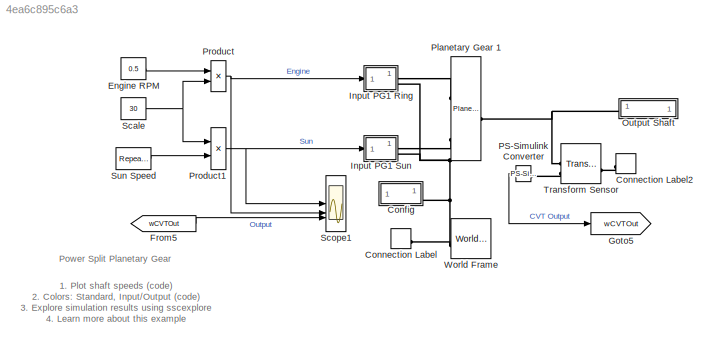
MODEL slx_4ea6c895c6a3
KIND model
CONFIG AbsTol = 1e-4
CONFIG EnableMultiTasking = on
CONFIG MaxStep = 0.01
CONFIG PreLoadFcn = cvtPar = sm_cvt_power_split_pg_4range_param('InputOutput',HMPST);
CONFIG SolverName = daessc
CONFIG StopTime = 25
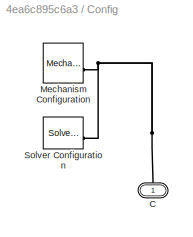
BLOCK [SubSystem] Config
BLOCK [PMIOPort] Config/C
  NameLocation = right
  Side = Left
BLOCK [Reference] Config/Mechanism Configuration  REF=sm_lib/Utilities/Mechanism
Configuration
  SourceBlock = sm_lib/Utilities/Mechanism\nConfiguration
  SourceType = Mechanism\nConfiguration
BLOCK [Reference] Config/Solver Configuration  REF=nesl_utility/Solver
Configuration
  SourceBlock = nesl_utility/Solver\nConfiguration
  SourceType = Solver\nConfiguration
BLOCK [ConnectionLabel] Connection Label
  Label = W
BLOCK [ConnectionLabel] Connection Label2
  Label = W
BLOCK [Constant] Engine RPM
  Value = 0.5
BLOCK [From] From5
  GotoTag = wCVTOut
BLOCK [Goto] Goto5
  GotoTag = wCVTOut
  NameLocation = top
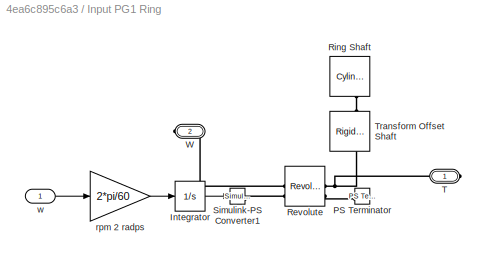
BLOCK [SubSystem] Input PG1 Ring
  NameLocation = top
  Tag = PublishSubsystem
BLOCK [Integrator] Input PG1 Ring/Integrator
BLOCK [Reference] Input PG1 Ring/PS Terminator  REF=fl_lib/Physical Signals/Sinks/PS Terminator
  SourceBlock = fl_lib/Physical Signals/Sinks/PS Terminator
  SourceType = PS Terminator
BLOCK [Reference] Input PG1 Ring/Revolute  REF=sm_lib/Joints/Revolute Joint
  SourceBlock = sm_lib/Joints/Revolute Joint
  SourceType = Revolute Joint
BLOCK [Reference] Input PG1 Ring/Ring Shaft  REF=Multibody_Parts_Lib/Basic/Cylinder
  NameLocation = right
  SourceBlock = Multibody_Parts_Lib/Basic/Cylinder
  SourceType = Cylinder with Hole
BLOCK [Reference] Input PG1 Ring/Simulink-PS Converter1  REF=nesl_utility/Simulink-PS
Converter
  SourceBlock = nesl_utility/Simulink-PS\nConverter
  SourceType = Simulink-PS\nConverter
BLOCK [PMIOPort] Input PG1 Ring/T
  NameLocation = top
  Side = Right
BLOCK [Reference] Input PG1 Ring/Transform Offset Shaft  REF=sm_lib/Frames and
Transforms/Rigid
Transform
  NameLocation = right
  SourceBlock = sm_lib/Frames and\nTransforms/Rigid\nTransform
  SourceType = Rigid\nTransform
BLOCK [PMIOPort] Input PG1 Ring/W
  NameLocation = top
  Port = 2
  Side = Right
BLOCK [Gain] Input PG1 Ring/rpm 2 radps
  Gain = 2*pi/60
BLOCK [Inport] Input PG1 Ring/w
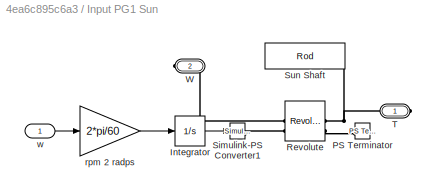
BLOCK [SubSystem] Input PG1 Sun
  NameLocation = top
  Tag = PublishSubsystem
BLOCK [Integrator] Input PG1 Sun/Integrator
BLOCK [Reference] Input PG1 Sun/PS Terminator  REF=fl_lib/Physical Signals/Sinks/PS Terminator
  SourceBlock = fl_lib/Physical Signals/Sinks/PS Terminator
  SourceType = PS Terminator
BLOCK [Reference] Input PG1 Sun/Revolute  REF=sm_lib/Joints/Revolute Joint
  SourceBlock = sm_lib/Joints/Revolute Joint
  SourceType = Revolute Joint
BLOCK [Reference] Input PG1 Sun/Simulink-PS Converter1  REF=nesl_utility/Simulink-PS
Converter
  SourceBlock = nesl_utility/Simulink-PS\nConverter
  SourceType = Simulink-PS\nConverter
BLOCK [Reference] Input PG1 Sun/Sun Shaft  REF=Multibody_Parts_Lib/Basic/Rod
  NameLocation = top
  SourceBlock = Multibody_Parts_Lib/Basic/Rod
  SourceType = Rod
BLOCK [PMIOPort] Input PG1 Sun/T
  NameLocation = top
  Side = Right
BLOCK [PMIOPort] Input PG1 Sun/W
  NameLocation = top
  Port = 2
  Side = Right
BLOCK [Gain] Input PG1 Sun/rpm 2 radps
  Gain = 2*pi/60
BLOCK [Inport] Input PG1 Sun/w
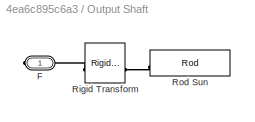
BLOCK [SubSystem] Output Shaft
BLOCK [PMIOPort] Output Shaft/F
  Side = Right
BLOCK [Reference] Output Shaft/Rigid Transform  REF=sm_lib/Frames and
Transforms/Rigid
Transform
  SourceBlock = sm_lib/Frames and\nTransforms/Rigid\nTransform
  SourceType = Rigid\nTransform
BLOCK [Reference] Output Shaft/Rod Sun  REF=Multibody_Parts_Lib/Basic/Rod
  NameLocation = top
  SourceBlock = Multibody_Parts_Lib/Basic/Rod
  SourceType = Rod
BLOCK [Reference] PS-Simulink Converter  REF=nesl_utility/PS-Simulink
Converter
  SourceBlock = nesl_utility/PS-Simulink\nConverter
  SourceType = PS-Simulink\nConverter
BLOCK [Reference] Planetary Gear 1  REF=planetary_gear_lib/Planetary Gear  (lib defined in slx_244bc64403c8, slx_f92dde08cbf6)
  SourceBlock = planetary_gear_lib/Planetary Gear
  Tag = PublishSubsystem
BLOCK [Product] Product
BLOCK [Product] Product1
BLOCK [Constant] Scale
  Value = 30
BLOCK [Scope] Scope1
  ActiveDisplayYMaximum = 75
  ActiveDisplayYMinimum = -75
  Floating = off
  GraphicalSettings = {"GraphicalSettings":{"LegacySettings":true,"Style":{"AxesScalingProperties":{"ScaleAxesLimitsAtStop":false},"Style":{"AxesColor":"[0 0 0]","ChannelNames":[""],"ColorOrder":"[1 1 0.0666666666666667;0.0745098039215686 0.623529411764706 1;1 0.411764705882353 0.16078431372549;0.392156862745098 0.831372549019608 0.0745098039215686;0.717647058823529 0.274509803921569 1;0.0588235294117647 1 1;1 0.074509...<+399ch>
  MultipleDisplayCache = [{"MaxYLimMag":75,"MaxYLimReal":75,"MinYLimMag":0,"MinYLimReal":-75,"PlotAsMagnitudePhase":false,"ShowGrid":true,"ShowLegend":true,"Title":"%<SignalLabel>","YLabel":""}]
  NumInputPorts = 3
  ShowLegend = on
  WasSavedAsWebScope = on
  WindowPosition = [867 608 506 379]
BLOCK [Reference] Sun Speed  REF=simulink/Sources/Repeating
Sequence
  SourceBlock = simulink/Sources/Repeating\nSequence
  SourceType = Repeating table
BLOCK [Reference] Transform Sensor  REF=sm_lib/Frames and
Transforms/Transform
Sensor
  SourceBlock = sm_lib/Frames and\nTransforms/Transform\nSensor
  SourceType = Transform\nSensor
BLOCK [Reference] World Frame  REF=sm_lib/Frames and
Transforms/World Frame
  SourceBlock = sm_lib/Frames and\nTransforms/World Frame
  SourceType = World Frame
ANNOTATION (root): 1. Plot shaft speeds ( code ) 2. Colors: Standard , Input/Output ( code ) 3. Explore simulation results using sscexplore 4. Learn more about this example
ANNOTATION (root): Power Split Planetary Gear
LINE Engine RPM:1 -> Product:1
LINE From5:1 -> Scope1:3
LINE Input PG1 Ring/Integrator:1 -> Input PG1 Ring/Simulink-PS Converter1:1
LINE Input PG1 Ring/rpm 2 radps:1 -> Input PG1 Ring/Integrator:1
LINE Input PG1 Ring/w:1 -> Input PG1 Ring/rpm 2 radps:1
LINE Input PG1 Sun/Integrator:1 -> Input PG1 Sun/Simulink-PS Converter1:1
LINE Input PG1 Sun/rpm 2 radps:1 -> Input PG1 Sun/Integrator:1
LINE Input PG1 Sun/w:1 -> Input PG1 Sun/rpm 2 radps:1
LINE PS-Simulink Converter:1 -> Goto5:1
NET Product1:1 -> Input PG1 Sun:1, Scope1:1
NET Product:1 -> Input PG1 Ring:1, Scope1:2
NET Scale:1 -> Product1:1, Product:2
LINE Sun Speed:1 -> Product1:2
PNET net1: Config/C:RConn1 -- Config/Mechanism Configuration:RConn1 -- Config/Solver Configuration:RConn1
PNET net2: Config:LConn1 -- Connection Label:LConn1 -- Input PG1 Ring:RConn2 -- Input PG1 Sun:RConn2 -- World Frame:RConn1
PLINE Connection Label2:LConn1 -- Transform Sensor:LConn1
PLINE Input PG1 Ring/PS Terminator:LConn1 -- Input PG1 Ring/Revolute:RConn2
PLINE Input PG1 Ring/Revolute:LConn1 -- Input PG1 Ring/W:RConn1
PLINE Input PG1 Ring/Revolute:LConn2 -- Input PG1 Ring/Simulink-PS Converter1:RConn1
PNET net3: Input PG1 Ring/Revolute:RConn1 -- Input PG1 Ring/T:RConn1 -- Input PG1 Ring/Transform Offset Shaft:RConn1
PLINE Input PG1 Ring/Ring Shaft:RConn1 -- Input PG1 Ring/Transform Offset Shaft:LConn1
PLINE Input PG1 Ring:RConn1 -- Planetary Gear 1:LConn1
PLINE Input PG1 Sun/PS Terminator:LConn1 -- Input PG1 Sun/Revolute:RConn2
PLINE Input PG1 Sun/Revolute:LConn1 -- Input PG1 Sun/W:RConn1
PLINE Input PG1 Sun/Revolute:LConn2 -- Input PG1 Sun/Simulink-PS Converter1:RConn1
PNET net4: Input PG1 Sun/Revolute:RConn1 -- Input PG1 Sun/Sun Shaft:RConn1 -- Input PG1 Sun/T:RConn1
PLINE Input PG1 Sun:RConn1 -- Planetary Gear 1:LConn3
PLINE Output Shaft/F:RConn1 -- Output Shaft/Rigid Transform:LConn1
PLINE Output Shaft/Rigid Transform:RConn1 -- Output Shaft/Rod Sun:LConn1
PNET net5: Output Shaft:RConn1 -- Planetary Gear 1:RConn2 -- Transform Sensor:RConn1
PLINE PS-Simulink Converter:LConn1 -- Transform Sensor:RConn2
note: NET lines group one-source signal fan-out (src -> all destinations, sorted); 1:1 wires keep LINE; PNET lines group multi-terminal physical nets as a canonical sorted terminal list (undirected conserving connections); 2-terminal nets keep the pairwise PLINE form
